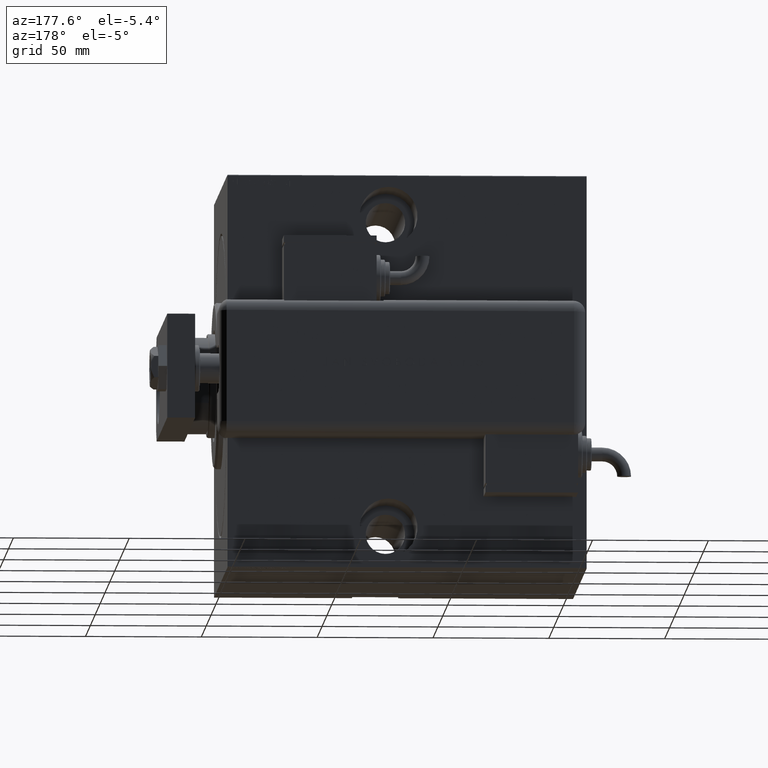
[diagram: clean part render]
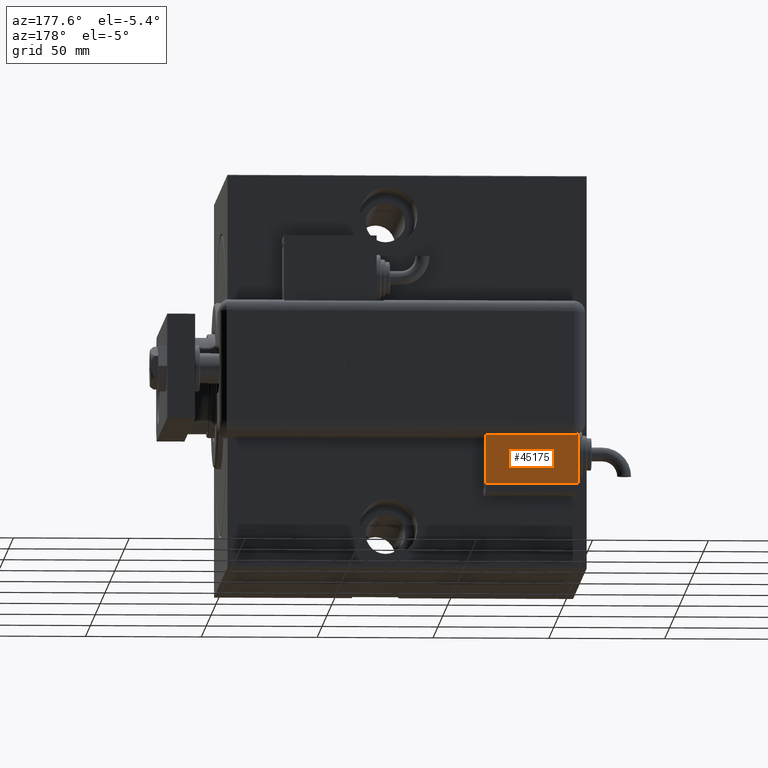
[diagram: same view with one face highlighted and labeled with its STEP entity id]
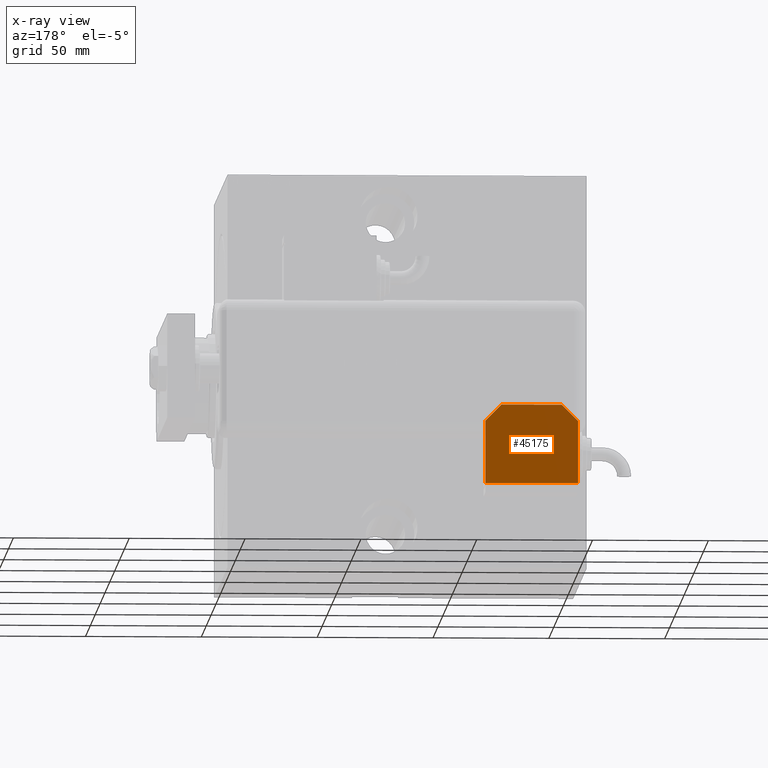
[diagram: x-ray of the same camera — body ghosted, the highlighted face saturated]
A machine part, auxiliary view. The second image highlights one B-rep face of the part: STEP entity #45175.
The next image is the same camera in x-ray: the body ghosted, the highlighted face saturated — about 0% of this face is hidden behind the body in this view.
In plain terms, the highlighted planar face has unit normal (0, -1, -0).
Its self-contained STEP definition (entity closure, byte-faithful):
#230 = CARTESIAN_POINT ( 'NONE',  ( -19.99999999999994316, -13.49999999999996092, -10.00000000000000000 ) ) ;
#2057 = DIRECTION ( 'NONE',  ( -0.7071067811865479058, 0.7071067811865470176, -0.000000000000000000 ) ) ;
#3854 = LINE ( 'NONE', #26292, #48485 ) ;
#4255 = VECTOR ( 'NONE', #50014, 1000.000000000000000 ) ;
#5238 = CARTESIAN_POINT ( 'NONE',  ( 0.000000000000000000, 20.50000000000009592, -10.00000000000000000 ) ) ;
#5651 = CARTESIAN_POINT ( 'NONE',  ( -19.99999999999994316, -13.49999999999996092, -10.00000000000000000 ) ) ;
#5884 = DIRECTION ( 'NONE',  ( 1.284980352575412699E-16, 1.000000000000000000, 0.000000000000000000 ) ) ;
#5935 = LINE ( 'NONE', #5651, #26968 ) ;
#6780 = CARTESIAN_POINT ( 'NONE',  ( 12.99999999999999112, 20.50000000000009592, -10.00000000000000000 ) ) ;
#7499 = CARTESIAN_POINT ( 'NONE',  ( 0.000000000000000000, 0.000000000000000000, -10.00000000000000000 ) ) ;
#7952 = CARTESIAN_POINT ( 'NONE',  ( -19.99999999999993960, 2.569960705150834076E-15, -9.999999999999996447 ) ) ;
#7969 = ORIENTED_EDGE ( 'NONE', *, *, #21433, .F. ) ;
#8077 = FACE_OUTER_BOUND ( 'NONE', #45605, .T. ) ;
#8398 = EDGE_CURVE ( 'NONE', #44211, #38537, #50075, .T. ) ;
#8579 = DIRECTION ( 'NONE',  ( 1.000000000000000000, 0.000000000000000000, 0.000000000000000000 ) ) ;
#9391 = VERTEX_POINT ( 'NONE', #230 ) ;
#10660 = ORIENTED_EDGE ( 'NONE', *, *, #29431, .F. ) ;
#11067 = LINE ( 'NONE', #50909, #21218 ) ;
#11517 = ORIENTED_EDGE ( 'NONE', *, *, #50184, .F. ) ;
#12718 = EDGE_CURVE ( 'NONE', #9391, #33394, #3854, .T. ) ;
#12818 = VECTOR ( 'NONE', #2057, 1000.000000000000114 ) ;
#16271 = CARTESIAN_POINT ( 'NONE',  ( -12.99999999999994138, 20.50000000000009592, -10.00000000000000000 ) ) ;
#16834 = EDGE_CURVE ( 'NONE', #25583, #38537, #28920, .T. ) ;
#18140 = ORIENTED_EDGE ( 'NONE', *, *, #12718, .F. ) ;
#18356 = DIRECTION ( 'NONE',  ( -1.284980352575421081E-16, -1.000000000000000000, -0.000000000000000000 ) ) ;
#19476 = LINE ( 'NONE', #46891, #40938 ) ;
#21075 = DIRECTION ( 'NONE',  ( 0.000000000000000000, 0.000000000000000000, 1.000000000000000000 ) ) ;
#21218 = VECTOR ( 'NONE', #47046, 1000.000000000000000 ) ;
#21433 = EDGE_CURVE ( 'NONE', #33394, #25583, #19476, .T. ) ;
#24511 = ORIENTED_EDGE ( 'NONE', *, *, #16834, .F. ) ;
#25583 = VERTEX_POINT ( 'NONE', #46135 ) ;
#26292 = CARTESIAN_POINT ( 'NONE',  ( -19.99999999999994316, -13.49999999999996092, -10.00000000000000000 ) ) ;
#26968 = VECTOR ( 'NONE', #18356, 1000.000000000000000 ) ;
#27362 = AXIS2_PLACEMENT_3D ( 'NONE', #7499, #21075, #47326 ) ;
#27780 = EDGE_CURVE ( 'NONE', #36741, #9391, #31750, .T. ) ;
#28920 = LINE ( 'NONE', #51631, #12818 ) ;
#29431 = EDGE_CURVE ( 'NONE', #47040, #36741, #5935, .T. ) ;
#30429 = VECTOR ( 'NONE', #40652, 1000.000000000000000 ) ;
#31750 = LINE ( 'NONE', #41751, #4255 ) ;
#33394 = VERTEX_POINT ( 'NONE', #48393 ) ;
#36741 = VERTEX_POINT ( 'NONE', #7952 ) ;
#38537 = VERTEX_POINT ( 'NONE', #6780 ) ;
#40652 = DIRECTION ( 'NONE',  ( 1.000000000000000000, 0.000000000000000000, 0.000000000000000000 ) ) ;
#40938 = VECTOR ( 'NONE', #5884, 1000.000000000000000 ) ;
#41751 = CARTESIAN_POINT ( 'NONE',  ( -19.99999999999994316, -13.49999999999996092, -10.00000000000000000 ) ) ;
#42197 = CARTESIAN_POINT ( 'NONE',  ( -19.99999999999993960, 13.49999999999986500, -10.00000000000000000 ) ) ;
#43738 = ORIENTED_EDGE ( 'NONE', *, *, #8398, .T. ) ;
#44211 = VERTEX_POINT ( 'NONE', #16271 ) ;
#45175 = ADVANCED_FACE ( 'NONE', ( #8077 ), #47925, .F. ) ;
#45605 = EDGE_LOOP ( 'NONE', ( #11517, #43738, #24511, #7969, #18140, #45896, #10660 ) ) ;
#45896 = ORIENTED_EDGE ( 'NONE', *, *, #27780, .F. ) ;
#46135 = CARTESIAN_POINT ( 'NONE',  ( 20.00000000000005684, 13.50000000000003730, -10.00000000000000000 ) ) ;
#46891 = CARTESIAN_POINT ( 'NONE',  ( 20.00000000000005329, -13.49999999999996092, -10.00000000000000000 ) ) ;
#47040 = VERTEX_POINT ( 'NONE', #42197 ) ;
#47046 = DIRECTION ( 'NONE',  ( -0.7071067811865356934, -0.7071067811865593411, -0.000000000000000000 ) ) ;
#47326 = DIRECTION ( 'NONE',  ( 1.000000000000000000, 0.000000000000000000, -0.000000000000000000 ) ) ;
#47925 = PLANE ( 'NONE',  #27362 ) ;
#48393 = CARTESIAN_POINT ( 'NONE',  ( 20.00000000000005329, -13.49999999999996092, -10.00000000000000000 ) ) ;
#48485 = VECTOR ( 'NONE', #8579, 1000.000000000000000 ) ;
#50014 = DIRECTION ( 'NONE',  ( -1.284980352575421081E-16, -1.000000000000000000, -0.000000000000000000 ) ) ;
#50075 = LINE ( 'NONE', #5238, #30429 ) ;
#50184 = EDGE_CURVE ( 'NONE', #44211, #47040, #11067, .T. ) ;
#50909 = CARTESIAN_POINT ( 'NONE',  ( -19.99999999999993960, 13.49999999999986500, -10.00000000000000000 ) ) ;
#51631 = CARTESIAN_POINT ( 'NONE',  ( 9.999999999999984013, 23.50000000000009592, -10.00000000000000000 ) ) ;